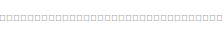
[diagram: root canvas - part 1/3, top left region]
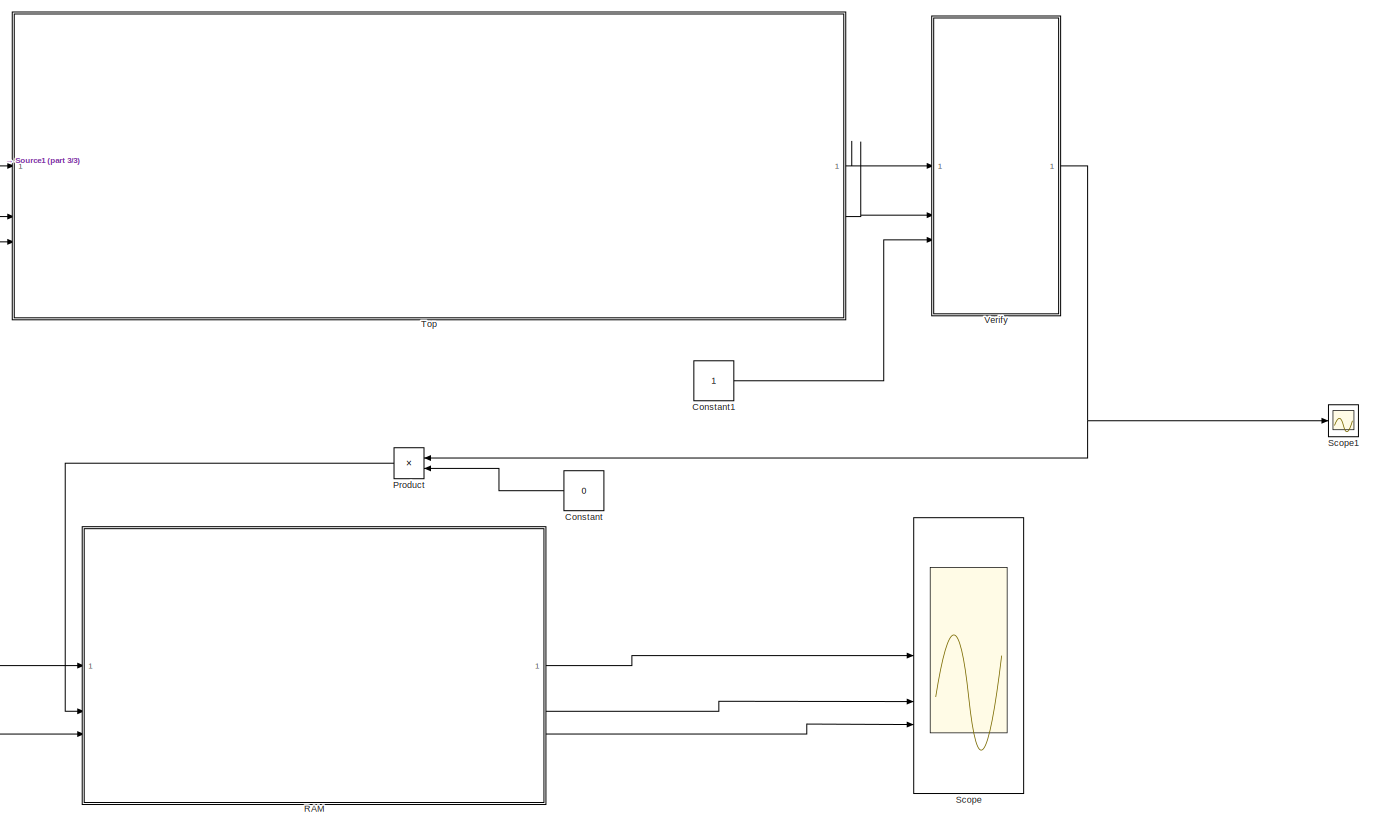
[diagram: root canvas - part 2/3, right side, full height]
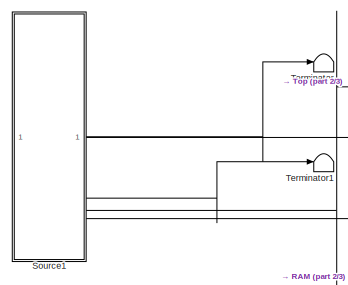
[diagram: root canvas - part 3/3, middle left region]
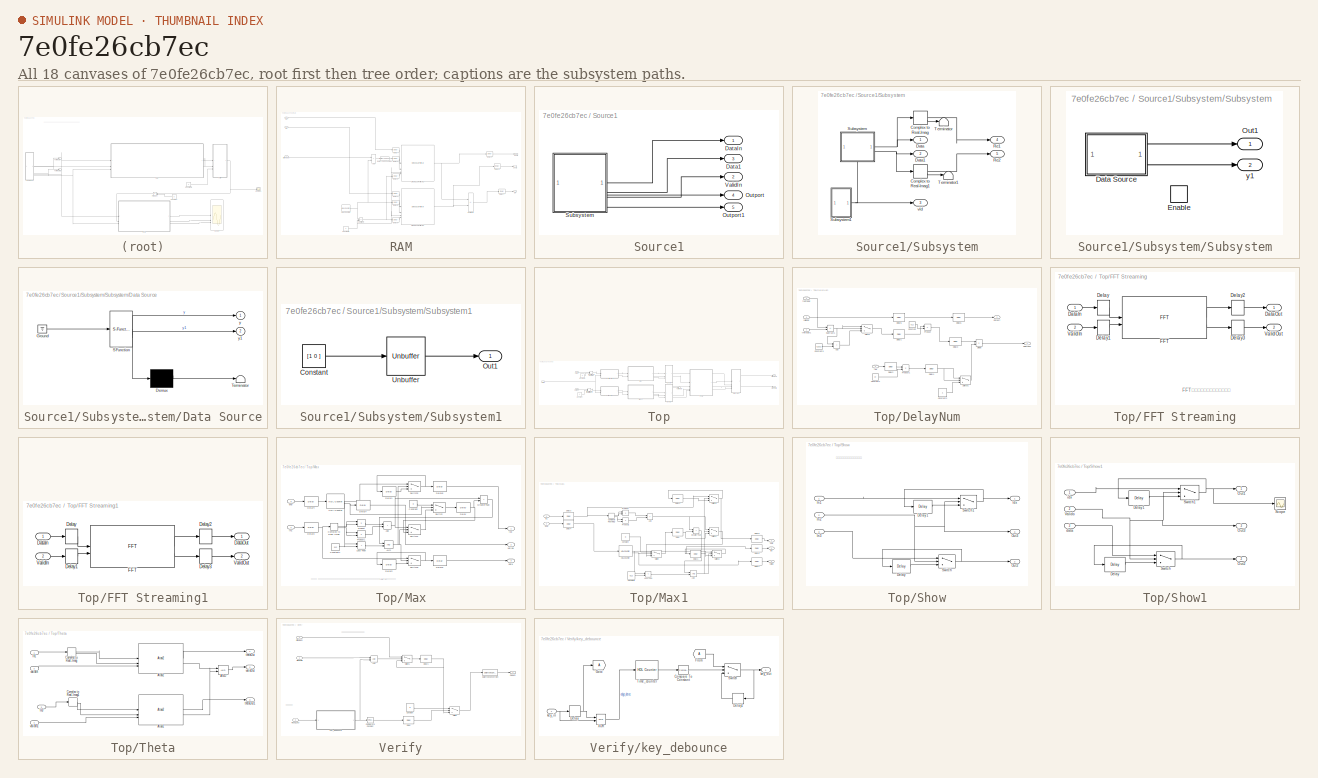
[diagram: thumbnail index - all 18 canvases of the model, root first then tree order]
MODEL slx_7e0fe26cb7ec
KIND model
CONFIG AbsTol = auto
CONFIG EnableMultiTasking = off
CONFIG FixedStep = auto
CONFIG MaxStep = auto
CONFIG MinStep = auto
CONFIG RelTol = 1e-3
CONFIG SampleTimeConstraint = Unconstrained
CONFIG SolverName = VariableStepAuto
CONFIG StartTime = 0.0
CONFIG StopTime = 1024*20
BLOCK [Constant] Constant
  NameLocation = top
  SampleTime = -1
  Value = 0
  VectorParams1D = off
BLOCK [Constant] Constant1
  OutDataTypeStr = boolean
  SampleTime = -1
  VectorParams1D = off
BLOCK [Product] Product
  NameLocation = top
  OutDataTypeStr = uint16
BLOCK [SubSystem] RAM
BLOCK [Sum] RAM/Add
  IconShape = rectangular
  OutDataTypeStr = uint16
BLOCK [Constant] RAM/Constant5
  OutDataTypeStr = Inherit: Inherit via back propagation
  SampleTime = -1
  VectorParams1D = off
BLOCK [DataTypeConversion] RAM/Data Type Conversion
  ConvertRealWorld = Stored Integer (SI)
  OutDataTypeStr = uint(12)
  RndMeth = Floor
  SaturateOnIntegerOverflow = off
BLOCK [Delay] RAM/Delay
  DelayLength = 1
  InitialCondition = 0
  InputPortMap = u0
  UseCircularBuffer = on
  UserDataPersistent = on
BLOCK [Delay] RAM/Delay2
  DelayLength = 1
  InitialCondition = 0
  InputPortMap = u0
  UseCircularBuffer = on
  UserDataPersistent = on
BLOCK [Delay] RAM/Delay3
  DelayLength = 1
  InitialCondition = 0
  InputPortMap = u0
  UseCircularBuffer = on
  UserDataPersistent = on
BLOCK [Delay] RAM/Delay4
  DelayLength = 1
  InitialCondition = 0
  InputPortMap = u0
  UseCircularBuffer = on
  UserDataPersistent = on
BLOCK [Delay] RAM/Delay5
  DelayLength = 1
  InitialCondition = 0
  InputPortMap = u0
  UseCircularBuffer = on
  UserDataPersistent = on
BLOCK [Delay] RAM/Delay6
  DelayLength = 1
  InitialCondition = 0
  InputPortMap = u0
  UseCircularBuffer = on
  UserDataPersistent = on
BLOCK [Delay] RAM/Delay7
  DelayLength = 1
  InitialCondition = 0
  InputPortMap = u0
  UseCircularBuffer = on
  UserDataPersistent = on
BLOCK [Delay] RAM/Delay8
  DelayLength = 1
  InitialCondition = 0
  InputPortMap = u0
  UseCircularBuffer = on
  UserDataPersistent = on
BLOCK [Delay] RAM/Delay9
  DelayLength = 1
  InitialCondition = 0
  InputPortMap = u0
  UseCircularBuffer = on
  UserDataPersistent = on
BLOCK [Outport] RAM/Err
BLOCK [Reference] RAM/HDL Counter4  REF=hdlsllib/Sources/HDL Counter
  SourceBlock = hdlsllib/Sources/HDL Counter
  SourceType = HDL Counter
BLOCK [Inport] RAM/OffsetAddr
  Port = 2
BLOCK [Inport] RAM/S1
  NameLocation = top
BLOCK [Inport] RAM/S2
  Port = 3
BLOCK [Reference] RAM/Simple Dual Port RAM3  REF=hdlsllib/HDL RAMs/Simple Dual Port RAM
  SourceBlock = hdlsllib/HDL RAMs/Simple Dual Port RAM
  SourceType = Simple Dual-port RAM
BLOCK [Reference] RAM/Simple Dual Port RAM4  REF=hdlsllib/HDL RAMs/Simple Dual Port RAM
  SourceBlock = hdlsllib/HDL RAMs/Simple Dual Port RAM
  SourceType = Simple Dual-port RAM
BLOCK [Outport] RAM/Sout1
  Port = 2
BLOCK [Outport] RAM/Sout2
  Port = 3
BLOCK [Sum] RAM/Subtract4
  IconShape = rectangular
  Inputs = +-
  OutDataTypeStr = uint(12)
BLOCK [Sum] RAM/Subtract6
  IconShape = rectangular
  Inputs = +-
BLOCK [Scope] Scope
  Floating = off
  NumInputPorts = 3
  ScopeSpecificationString = Simulink.scopes.TimeScopeBlockCfg('CurrentConfiguration', extmgr.ConfigurationSet(extmgr.Configuration('Core','General UI',true),extmgr.Configuration('Core','Source UI',true),extmgr.Configuration('Sources','WiredSimulink',true,'DataLoggingVariableName','ScopeData1'),extmgr.Configuration('Visuals','Time Domain',true,'SerializedDisplays',{struct('MinYLimReal','-1.36459','MaxYLimReal','1.03134','YLab...<+2777ch>
BLOCK [Scope] Scope1
  Floating = off
  NumInputPorts = 1
  ScopeSpecificationString = Simulink.scopes.TimeScopeBlockCfg('CurrentConfiguration', extmgr.ConfigurationSet(extmgr.Configuration('Core','General UI',true),extmgr.Configuration('Core','Source UI',true),extmgr.Configuration('Sources','WiredSimulink',true,'DataLoggingVariableName','ScopeData2'),extmgr.Configuration('Visuals','Time Domain',true,'SerializedDisplays',{struct('MinYLimReal','-1.25','MaxYLimReal','11.25','YLabelRea...<+1384ch>
BLOCK [SubSystem] Source1
BLOCK [Outport] Source1/Data1
  Port = 3
  VectorParamsAs1DForOutWhenUnconnected = off
BLOCK [Outport] Source1/DataIn
  VectorParamsAs1DForOutWhenUnconnected = off
BLOCK [Outport] Source1/Outport
  Port = 4
BLOCK [Outport] Source1/Outport1
  Port = 5
BLOCK [SubSystem] Source1/Subsystem
BLOCK [ComplexToRealImag] Source1/Subsystem/Complex to Real-Imag
BLOCK [ComplexToRealImag] Source1/Subsystem/Complex to Real-Imag1
BLOCK [Outport] Source1/Subsystem/Data
  VectorParamsAs1DForOutWhenUnconnected = off
BLOCK [Outport] Source1/Subsystem/Data1
  Port = 2
  VectorParamsAs1DForOutWhenUnconnected = off
BLOCK [Outport] Source1/Subsystem/Re1
  Port = 4
  VectorParamsAs1DForOutWhenUnconnected = off
BLOCK [Outport] Source1/Subsystem/Re2
  Port = 5
  VectorParamsAs1DForOutWhenUnconnected = off
BLOCK [SubSystem] Source1/Subsystem/Subsystem
  NameLocation = top
BLOCK [SubSystem] Source1/Subsystem/Subsystem/Data Source
  ErrorFcn = Stateflow.Translate.translate
  PermitHierarchicalResolution = ExplicitOnly
  SFBlockType = MATLAB Function
  TreatAsAtomicUnit = on
BLOCK [Demux] Source1/Subsystem/Subsystem/Data Source/ Demux 
  Outputs = 1
BLOCK [Ground] Source1/Subsystem/Subsystem/Data Source/ Ground 
BLOCK [S-Function] Source1/Subsystem/Subsystem/Data Source/ SFunction 
  EnableBusSupport = on
  FunctionName = sf_sfun
  PortCounts = [1 3]
  SFcnIsStateOwnerBlock = off
  SFunctionDeploymentMode = off
  Tag = Stateflow S-Function 1
BLOCK [Terminator] Source1/Subsystem/Subsystem/Data Source/ Terminator 
BLOCK [Outport] Source1/Subsystem/Subsystem/Data Source/y
  VectorParamsAs1DForOutWhenUnconnected = off
BLOCK [Outport] Source1/Subsystem/Subsystem/Data Source/y1
  Port = 2
BLOCK [EnablePort] Source1/Subsystem/Subsystem/Enable
BLOCK [Outport] Source1/Subsystem/Subsystem/Out1
  VectorParamsAs1DForOutWhenUnconnected = off
BLOCK [Outport] Source1/Subsystem/Subsystem/y1
  Port = 2
  VectorParamsAs1DForOutWhenUnconnected = off
BLOCK [SubSystem] Source1/Subsystem/Subsystem1
BLOCK [Constant] Source1/Subsystem/Subsystem1/Constant
  OutDataTypeStr = boolean
  SampleTime = -1
  Value = [1 0 ]
BLOCK [Outport] Source1/Subsystem/Subsystem1/Out1
  VectorParamsAs1DForOutWhenUnconnected = off
BLOCK [Unbuffer] Source1/Subsystem/Subsystem1/Unbuffer
BLOCK [Terminator] Source1/Subsystem/Terminator
BLOCK [Terminator] Source1/Subsystem/Terminator1
BLOCK [Outport] Source1/Subsystem/vld
  Port = 3
  VectorParamsAs1DForOutWhenUnconnected = off
BLOCK [Outport] Source1/ValidIn
  Port = 2
  VectorParamsAs1DForOutWhenUnconnected = off
BLOCK [Terminator] Terminator
BLOCK [Terminator] Terminator1
BLOCK [SubSystem] Top
BLOCK [Constant] Top/Constant
  OutDataTypeStr = Inherit: Inherit via back propagation
  SampleTime = -1
  Value = 0
  VectorParams1D = off
BLOCK [Constant] Top/Constant1
  OutDataTypeStr = Inherit: Inherit via back propagation
  SampleTime = -1
  Value = 0
  VectorParams1D = off
BLOCK [Inport] Top/DataIn
BLOCK [Inport] Top/DataIn1
  Port = 3
BLOCK [SubSystem] Top/DelayNum
BLOCK [Sum] Top/DelayNum/Add
  IconShape = rectangular
BLOCK [Constant] Top/DelayNum/Constant
  OutDataTypeStr = uint16
  SampleTime = -1
  Value = 512
BLOCK [Constant] Top/DelayNum/Constant1
  OutDataTypeStr = fixdt(1,17,13)
  SampleTime = -1
  Value = pi
  VectorParams1D = off
BLOCK [Constant] Top/DelayNum/Constant2
  OutDataTypeStr = fixdt(1,27,13)
  SampleTime = -1
  VectorParams1D = off
BLOCK [Constant] Top/DelayNum/Constant3
  OutDataTypeStr = fixdt(1,17,13)
  SampleTime = -1
  Value = 6.2832
  VectorParams1D = off
BLOCK [Delay] Top/DelayNum/Delay1
  DelayLength = 1
  InitialCondition = 0
  InputPortMap = u0
  UseCircularBuffer = on
  UserDataPersistent = on
BLOCK [Delay] Top/DelayNum/Delay2
  DelayLength = 1
  InitialCondition = 0
  InputPortMap = u0
  UseCircularBuffer = on
  UserDataPersistent = on
BLOCK [Delay] Top/DelayNum/Delay3
  DelayLength = 1
  InitialCondition = 0
  InputPortMap = u0
  UseCircularBuffer = on
  UserDataPersistent = on
BLOCK [Delay] Top/DelayNum/Delay4
  DelayLength = 1
  InitialCondition = 0
  InputPortMap = u0
  UseCircularBuffer = on
  UserDataPersistent = on
BLOCK [Delay] Top/DelayNum/Delay5
  DelayLength = 1
  InitialCondition = 0
  InputPortMap = u0
  UseCircularBuffer = on
  UserDataPersistent = on
BLOCK [Delay] Top/DelayNum/Delay6
  DelayLength = 1
  InitialCondition = 0
  InputPortMap = u0
  UseCircularBuffer = on
  UserDataPersistent = on
BLOCK [Outport] Top/DelayNum/DelayNum
  InitialOutput = 0
BLOCK [Product] Top/DelayNum/Divide
  Inputs = */
  RndMeth = Simplest
  SaturateOnIntegerOverflow = on
BLOCK [Inport] Top/DelayNum/Idx
  Port = 2
BLOCK [Outport] Top/DelayNum/Outport
  Port = 2
BLOCK [Product] Top/DelayNum/Product
BLOCK [Product] Top/DelayNum/Product1
BLOCK [Sum] Top/DelayNum/Subtract1
  IconShape = rectangular
  Inputs = -+
BLOCK [Switch] Top/DelayNum/Switch
  InputSameDT = off
  SaturateOnIntegerOverflow = off
BLOCK [Switch] Top/DelayNum/Switch1
  Criteria = u2 ~= 0
  InputSameDT = off
  SaturateOnIntegerOverflow = off
BLOCK [Inport] Top/DelayNum/thetaOut
BLOCK [Inport] Top/DelayNum/thetaOut1
  Port = 4
BLOCK [Inport] Top/DelayNum/validOut
  Port = 3
BLOCK [SubSystem] Top/FFT Streaming
BLOCK [Inport] Top/FFT Streaming/DataIn
BLOCK [Outport] Top/FFT Streaming/DataOut
  VectorParamsAs1DForOutWhenUnconnected = off
BLOCK [Delay] Top/FFT Streaming/Delay
  DelayLength = 1
  InitialCondition = 0
  InputPortMap = u0
  UseCircularBuffer = on
  UserDataPersistent = on
BLOCK [Delay] Top/FFT Streaming/Delay1
  DelayLength = 1
  InitialCondition = 0
  InputPortMap = u0
  UseCircularBuffer = on
  UserDataPersistent = on
BLOCK [Delay] Top/FFT Streaming/Delay2
  DelayLength = 1
  InitialCondition = 0
  InputPortMap = u0
  UseCircularBuffer = on
  UserDataPersistent = on
BLOCK [Delay] Top/FFT Streaming/Delay3
  DelayLength = 1
  InitialCondition = 0
  InputPortMap = u0
  UseCircularBuffer = on
  UserDataPersistent = on
BLOCK [Reference] Top/FFT Streaming/FFT  REF=dsphdlxfrm2/FFT
  SourceBlock = dsphdlxfrm2/FFT
  SourceType = FFT
BLOCK [Inport] Top/FFT Streaming/ValidIn
  Port = 2
BLOCK [Outport] Top/FFT Streaming/ValidOut
  Port = 2
  VectorParamsAs1DForOutWhenUnconnected = off
BLOCK [SubSystem] Top/FFT Streaming1
BLOCK [Inport] Top/FFT Streaming1/DataIn
BLOCK [Outport] Top/FFT Streaming1/DataOut
  VectorParamsAs1DForOutWhenUnconnected = off
BLOCK [Delay] Top/FFT Streaming1/Delay
  DelayLength = 1
  InitialCondition = 0
  InputPortMap = u0
  UseCircularBuffer = on
  UserDataPersistent = on
BLOCK [Delay] Top/FFT Streaming1/Delay1
  DelayLength = 1
  InitialCondition = 0
  InputPortMap = u0
  UseCircularBuffer = on
  UserDataPersistent = on
BLOCK [Delay] Top/FFT Streaming1/Delay2
  DelayLength = 1
  InitialCondition = 0
  InputPortMap = u0
  UseCircularBuffer = on
  UserDataPersistent = on
BLOCK [Delay] Top/FFT Streaming1/Delay3
  DelayLength = 1
  InitialCondition = 0
  InputPortMap = u0
  UseCircularBuffer = on
  UserDataPersistent = on
BLOCK [Reference] Top/FFT Streaming1/FFT  REF=dsphdlxfrm2/FFT
  SourceBlock = dsphdlxfrm2/FFT
  SourceType = FFT
BLOCK [Inport] Top/FFT Streaming1/ValidIn
  Port = 2
BLOCK [Outport] Top/FFT Streaming1/ValidOut
  Port = 2
  VectorParamsAs1DForOutWhenUnconnected = off
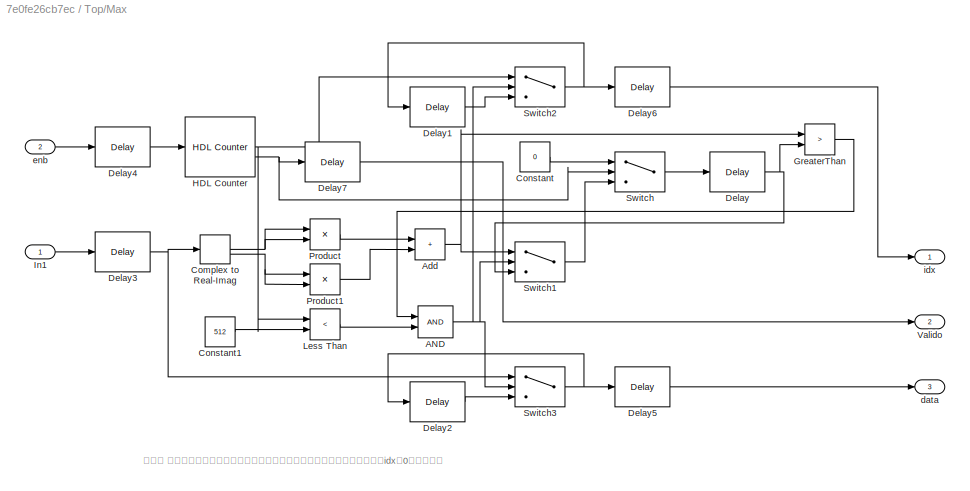
BLOCK [SubSystem] Top/Max
BLOCK [Logic] Top/Max/AND
  AllPortsSameDT = off
  IconShape = distinctive
  OutDataTypeStr = boolean
BLOCK [Sum] Top/Max/Add
  IconShape = rectangular
BLOCK [ComplexToRealImag] Top/Max/Complex to Real-Imag
BLOCK [Constant] Top/Max/Constant
  OutDataTypeStr = Inherit: Inherit via back propagation
  SampleTime = -1
  Value = 0
  VectorParams1D = off
BLOCK [Constant] Top/Max/Constant1
  OutDataTypeStr = Inherit: Inherit via back propagation
  SampleTime = -1
  Value = 512
  VectorParams1D = off
BLOCK [Delay] Top/Max/Delay
  DelayLength = 1
  InitialCondition = 0
  InputPortMap = u0
  UseCircularBuffer = on
  UserDataPersistent = on
BLOCK [Delay] Top/Max/Delay1
  DelayLength = 1
  InitialCondition = 0
  InputPortMap = u0
  UseCircularBuffer = on
  UserDataPersistent = on
BLOCK [Delay] Top/Max/Delay2
  DelayLength = 1
  InitialCondition = 0
  InputPortMap = u0
  UseCircularBuffer = on
  UserDataPersistent = on
BLOCK [Delay] Top/Max/Delay3
  DelayLength = 1
  InitialCondition = 0
  InputPortMap = u0
  UseCircularBuffer = on
  UserDataPersistent = on
BLOCK [Delay] Top/Max/Delay4
  DelayLength = 1
  InitialCondition = 0
  InputPortMap = u0
  UseCircularBuffer = on
  UserDataPersistent = on
BLOCK [Delay] Top/Max/Delay5
  DelayLength = 1
  InitialCondition = 0
  InputPortMap = u0
  UseCircularBuffer = on
  UserDataPersistent = on
BLOCK [Delay] Top/Max/Delay6
  DelayLength = 1
  InitialCondition = 0
  InputPortMap = u0
  UseCircularBuffer = on
  UserDataPersistent = on
BLOCK [Delay] Top/Max/Delay7
  DelayLength = 1
  InitialCondition = 0
  InputPortMap = u0
  UseCircularBuffer = on
  UserDataPersistent = on
BLOCK [RelationalOperator] Top/Max/GreaterThan
  InputSameDT = off
  Operator = >
  OutDataTypeStr = boolean
  RndMeth = Simplest
BLOCK [Reference] Top/Max/HDL Counter  REF=hdlsllib/Sources/HDL Counter
  SourceBlock = hdlsllib/Sources/HDL Counter
  SourceType = HDL Counter
BLOCK [Inport] Top/Max/In1
BLOCK [RelationalOperator] Top/Max/Less Than
  InputSameDT = off
  Operator = <
  OutDataTypeStr = boolean
  RndMeth = Simplest
BLOCK [Product] Top/Max/Product
BLOCK [Product] Top/Max/Product1
BLOCK [Switch] Top/Max/Switch
  Criteria = u2 ~= 0
  InputSameDT = off
  SaturateOnIntegerOverflow = off
BLOCK [Switch] Top/Max/Switch1
  Criteria = u2 ~= 0
  InputSameDT = off
  SaturateOnIntegerOverflow = off
BLOCK [Switch] Top/Max/Switch2
  Criteria = u2 ~= 0
  InputSameDT = off
  SaturateOnIntegerOverflow = off
BLOCK [Switch] Top/Max/Switch3
  Criteria = u2 ~= 0
  InputSameDT = off
  SaturateOnIntegerOverflow = off
BLOCK [Outport] Top/Max/Valido
  Port = 2
BLOCK [Outport] Top/Max/data
  Port = 3
BLOCK [Inport] Top/Max/enb
  Port = 2
BLOCK [Outport] Top/Max/idx
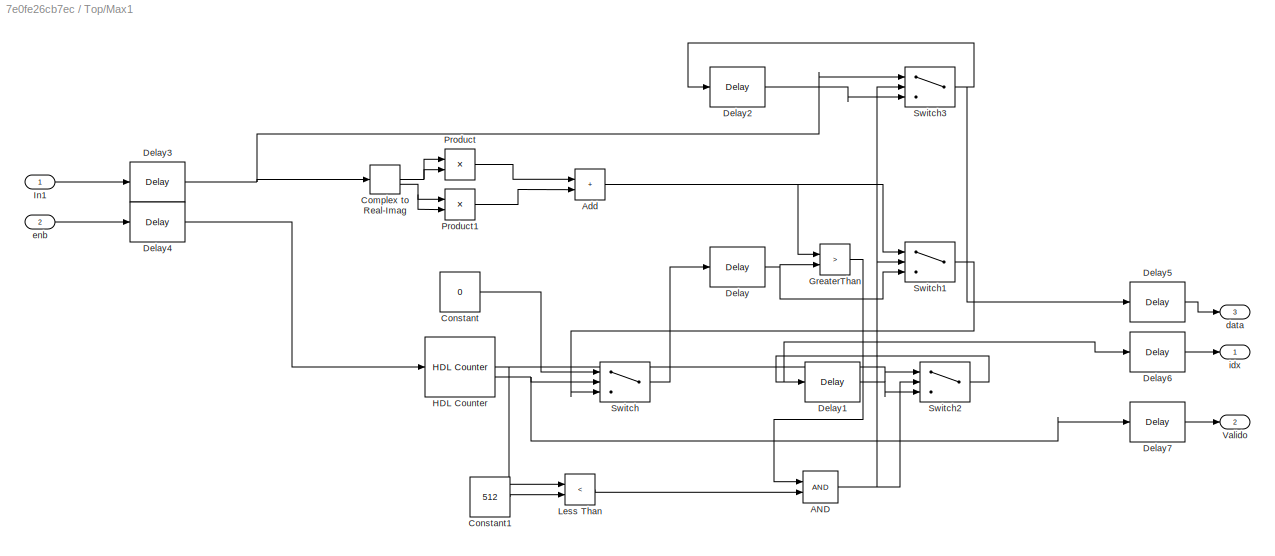
BLOCK [SubSystem] Top/Max1
BLOCK [Logic] Top/Max1/AND
  AllPortsSameDT = off
  IconShape = distinctive
  OutDataTypeStr = boolean
BLOCK [Sum] Top/Max1/Add
  IconShape = rectangular
BLOCK [ComplexToRealImag] Top/Max1/Complex to Real-Imag
BLOCK [Constant] Top/Max1/Constant
  OutDataTypeStr = Inherit: Inherit via back propagation
  SampleTime = -1
  Value = 0
  VectorParams1D = off
BLOCK [Constant] Top/Max1/Constant1
  OutDataTypeStr = Inherit: Inherit via back propagation
  SampleTime = -1
  Value = 512
  VectorParams1D = off
BLOCK [Delay] Top/Max1/Delay
  DelayLength = 1
  InitialCondition = 0
  InputPortMap = u0
  UseCircularBuffer = on
  UserDataPersistent = on
BLOCK [Delay] Top/Max1/Delay1
  DelayLength = 1
  InitialCondition = 0
  InputPortMap = u0
  UseCircularBuffer = on
  UserDataPersistent = on
BLOCK [Delay] Top/Max1/Delay2
  DelayLength = 1
  InitialCondition = 0
  InputPortMap = u0
  UseCircularBuffer = on
  UserDataPersistent = on
BLOCK [Delay] Top/Max1/Delay3
  DelayLength = 1
  InitialCondition = 0
  InputPortMap = u0
  UseCircularBuffer = on
  UserDataPersistent = on
BLOCK [Delay] Top/Max1/Delay4
  DelayLength = 1
  InitialCondition = 0
  InputPortMap = u0
  UseCircularBuffer = on
  UserDataPersistent = on
BLOCK [Delay] Top/Max1/Delay5
  DelayLength = 1
  InitialCondition = 0
  InputPortMap = u0
  UseCircularBuffer = on
  UserDataPersistent = on
BLOCK [Delay] Top/Max1/Delay6
  DelayLength = 1
  InitialCondition = 0
  InputPortMap = u0
  UseCircularBuffer = on
  UserDataPersistent = on
BLOCK [Delay] Top/Max1/Delay7
  DelayLength = 1
  InitialCondition = 0
  InputPortMap = u0
  UseCircularBuffer = on
  UserDataPersistent = on
BLOCK [RelationalOperator] Top/Max1/GreaterThan
  InputSameDT = off
  Operator = >
  OutDataTypeStr = boolean
  RndMeth = Simplest
BLOCK [Reference] Top/Max1/HDL Counter  REF=hdlsllib/Sources/HDL Counter
  SourceBlock = hdlsllib/Sources/HDL Counter
  SourceType = HDL Counter
BLOCK [Inport] Top/Max1/In1
BLOCK [RelationalOperator] Top/Max1/Less Than
  InputSameDT = off
  Operator = <
  OutDataTypeStr = boolean
  RndMeth = Simplest
BLOCK [Product] Top/Max1/Product
BLOCK [Product] Top/Max1/Product1
BLOCK [Switch] Top/Max1/Switch
  Criteria = u2 ~= 0
  InputSameDT = off
  SaturateOnIntegerOverflow = off
BLOCK [Switch] Top/Max1/Switch1
  Criteria = u2 ~= 0
  InputSameDT = off
  SaturateOnIntegerOverflow = off
BLOCK [Switch] Top/Max1/Switch2
  Criteria = u2 ~= 0
  InputSameDT = off
  SaturateOnIntegerOverflow = off
BLOCK [Switch] Top/Max1/Switch3
  Criteria = u2 ~= 0
  InputSameDT = off
  SaturateOnIntegerOverflow = off
BLOCK [Outport] Top/Max1/Valido
  Port = 2
BLOCK [Outport] Top/Max1/data
  Port = 3
BLOCK [Inport] Top/Max1/enb
  Port = 2
BLOCK [Outport] Top/Max1/idx
BLOCK [Outport] Top/OffsetNum
BLOCK [Outport] Top/OffsetValid
  Port = 2
BLOCK [RealImagToComplex] Top/Real-Imag to Complex
BLOCK [RealImagToComplex] Top/Real-Imag to Complex1
BLOCK [SubSystem] Top/Show
BLOCK [Delay] Top/Show/Delay
  DelayLength = 1
  InitialCondition = 0
  InputPortMap = u0
  UseCircularBuffer = on
  UserDataPersistent = on
BLOCK [Delay] Top/Show/Delay1
  DelayLength = 1
  InitialCondition = 0
  InputPortMap = u0
  UseCircularBuffer = on
  UserDataPersistent = on
BLOCK [Outport] Top/Show/Idx
BLOCK [Inport] Top/Show/In1
BLOCK [Inport] Top/Show/In2
  Port = 2
BLOCK [Inport] Top/Show/In3
  Port = 3
BLOCK [Outport] Top/Show/Out2
  Port = 2
BLOCK [Outport] Top/Show/Out3
  Port = 3
BLOCK [Switch] Top/Show/Switch
  Criteria = u2 ~= 0
  InputSameDT = off
  SaturateOnIntegerOverflow = off
BLOCK [Switch] Top/Show/Switch1
  Criteria = u2 ~= 0
  InputSameDT = off
  SaturateOnIntegerOverflow = off
BLOCK [SubSystem] Top/Show1
BLOCK [Delay] Top/Show1/Delay
  DelayLength = 1
  InitialCondition = 0
  InputPortMap = u0
  UseCircularBuffer = on
  UserDataPersistent = on
BLOCK [Delay] Top/Show1/Delay1
  DelayLength = 1
  InitialCondition = 0
  InputPortMap = u0
  UseCircularBuffer = on
  UserDataPersistent = on
BLOCK [Outport] Top/Show1/Out1
BLOCK [Outport] Top/Show1/Out2
  Port = 2
BLOCK [Outport] Top/Show1/Out3
  Port = 3
BLOCK [Scope] Top/Show1/Scope
  Floating = off
  NumInputPorts = 1
  ScopeSpecificationString = Simulink.scopes.TimeScopeBlockCfg('CurrentConfiguration', extmgr.ConfigurationSet(extmgr.Configuration('Core','General UI',true),extmgr.Configuration('Core','Source UI',true),extmgr.Configuration('Sources','WiredSimulink',true,'DataLoggingVariableName','ScopeData1'),extmgr.Configuration('Visuals','Time Domain',true,'SerializedDisplays',{struct('MinYLimReal','-6.375','MaxYLimReal','57.375','YLabelR...<+1358ch>
BLOCK [Switch] Top/Show1/Switch
  Criteria = u2 ~= 0
  InputSameDT = off
  SaturateOnIntegerOverflow = off
BLOCK [Switch] Top/Show1/Switch1
  Criteria = u2 ~= 0
  InputSameDT = off
  SaturateOnIntegerOverflow = off
BLOCK [Inport] Top/Show1/Valido
  Port = 2
BLOCK [Inport] Top/Show1/data
  Port = 3
BLOCK [Inport] Top/Show1/idx
BLOCK [Terminator] Top/Terminator
BLOCK [SubSystem] Top/Theta
BLOCK [Logic] Top/Theta/AND
  AllPortsSameDT = off
  IconShape = distinctive
  OutDataTypeStr = boolean
BLOCK [Reference] Top/Theta/Atan1  REF=HDLMathLib/Atan2
  SourceBlock = HDLMathLib/Atan2
  SourceType = Atan2
BLOCK [Reference] Top/Theta/Atan2  REF=HDLMathLib/Atan2
  SourceBlock = HDLMathLib/Atan2
  SourceType = Atan2
BLOCK [ComplexToRealImag] Top/Theta/Complex to Real-Imag
BLOCK [ComplexToRealImag] Top/Theta/Complex to Real-Imag1
BLOCK [Inport] Top/Theta/In1
BLOCK [Inport] Top/Theta/In3
  Port = 3
BLOCK [Outport] Top/Theta/thetaOut
BLOCK [Outport] Top/Theta/thetaOut1
  Port = 3
BLOCK [Inport] Top/Theta/validIn
  Port = 2
BLOCK [Inport] Top/Theta/validIn1
  Port = 4
BLOCK [Outport] Top/Theta/validOut
  Port = 2
BLOCK [Inport] Top/ValidIn
  Port = 2
BLOCK [SubSystem] Verify
BLOCK [Logic] Verify/AND
  AllPortsSameDT = off
  IconShape = distinctive
  OutDataTypeStr = boolean
BLOCK [Reference] Verify/Compare To Constant  REF=hdlsllib/Logic and Bit
Operations/Compare
To Constant
  SourceBlock = hdlsllib/Logic and Bit\nOperations/Compare\nTo Constant
  SourceType = Compare To Constant
BLOCK [Constant] Verify/Constant
  OutDataTypeStr = int16
  SampleTime = -1
  Value = 0
  VectorParams1D = off
BLOCK [DataTypeConversion] Verify/Data Type Conversion
  OutDataTypeStr = uint16
  RndMeth = Floor
  SaturateOnIntegerOverflow = off
BLOCK [Outport] Verify/DelNum
BLOCK [Delay] Verify/Delay
  DelayLength = 1
  InitialCondition = 0
  InputPortMap = u0
  UseCircularBuffer = on
  UserDataPersistent = on
BLOCK [Delay] Verify/Delay1
  DelayLength = 1
  InitialCondition = 0
  InputPortMap = u0
  UseCircularBuffer = on
  UserDataPersistent = on
BLOCK [Inport] Verify/OffsetNum
BLOCK [Inport] Verify/OffsetValid
  Port = 2
BLOCK [Inport] Verify/Reset_key
  OutDataTypeStr = boolean
  Port = 3
BLOCK [Switch] Verify/Switch
  Criteria = u2 ~= 0
  InputSameDT = off
  SaturateOnIntegerOverflow = off
BLOCK [Switch] Verify/Switch1
  Criteria = u2 ~= 0
  InputSameDT = off
  SaturateOnIntegerOverflow = off
BLOCK [SubSystem] Verify/key_debounce
BLOCK [Reference] Verify/key_debounce/Compare To Constant  REF=simulink/Logic and Bit
Operations/Compare
To Constant
  SourceBlock = simulink/Logic and Bit\nOperations/Compare\nTo Constant
  SourceType = Compare To Constant
BLOCK [Delay] Verify/key_debounce/Delay
  DelayLength = 1
  InitialCondition = 1
  InputPortMap = u0
BLOCK [Delay] Verify/key_debounce/Delay1
  DelayLength = 1
  InitialCondition = 1
  InputPortMap = u0
  NameLocation = top
BLOCK [From] Verify/key_debounce/From
BLOCK [Goto] Verify/key_debounce/Goto
BLOCK [Switch] Verify/key_debounce/Switch
  Criteria = u2 > Threshold
  InputSameDT = off
  SaturateOnIntegerOverflow = off
BLOCK [Reference] Verify/key_debounce/Time_counter  REF=hdlsllib/Sources/HDL Counter
  SourceBlock = hdlsllib/Sources/HDL Counter
  SourceType = HDL Counter
BLOCK [Logic] Verify/key_debounce/XOR
  AllPortsSameDT = off
  IconShape = distinctive
  Operator = XOR
  OutDataTypeStr = boolean
BLOCK [Inport] Verify/key_debounce/key_in
BLOCK [Outport] Verify/key_debounce/key_out
  VectorParamsAs1DForOutWhenUnconnected = off
ANNOTATION (root): 添加两个按键输入信号，一个用于复位，一个用于相位校正，保持最后一次校正值
ANNOTATION Top/FFT Streaming: FFT单元，输入输出添加了寄存器
ANNOTATION Top/Max: 输入为 复数以及有效信号，计算幅值大小并存储当前最大值，最后一起输出。idx从0开始计算。
ANNOTATION Top/Show: 调试单元，可以查看输出情况
ANNOTATION Verify: 低电平表示按下
ANNOTATION Verify: 保持电路，如果没有复位则保持 上一次的有效偏移量
LINE Constant1:1 -> Verify:3
LINE Constant:1 -> Product:2
LINE Product:1 -> RAM:2
LINE RAM/Add:1 -> RAM/Data Type Conversion:1
NET RAM/Constant5:1 -> RAM/Simple Dual Port RAM3:3, RAM/Simple Dual Port RAM4:3, RAM/Subtract4:2
LINE RAM/Data Type Conversion:1 -> RAM/Delay2:1
LINE RAM/Delay2:1 -> RAM/Simple Dual Port RAM3:2
LINE RAM/Delay3:1 -> RAM/Simple Dual Port RAM3:4
LINE RAM/Delay4:1 -> RAM/Simple Dual Port RAM4:1
LINE RAM/Delay5:1 -> RAM/Simple Dual Port RAM4:2
LINE RAM/Delay6:1 -> RAM/Simple Dual Port RAM4:4
LINE RAM/Delay7:1 -> RAM/Err:1
LINE RAM/Delay8:1 -> RAM/Sout2:1
LINE RAM/Delay9:1 -> RAM/Sout1:1
LINE RAM/Delay:1 -> RAM/Simple Dual Port RAM3:1
NET RAM/HDL Counter4:1 -> RAM/Add:2, RAM/Delay5:1, RAM/Subtract4:1
LINE RAM/OffsetAddr:1 -> RAM/Add:1
LINE RAM/S1:1 -> RAM/Delay:1
LINE RAM/S2:1 -> RAM/Delay4:1
NET RAM/Simple Dual Port RAM3:1 -> RAM/Delay9:1, RAM/Subtract6:1
NET RAM/Simple Dual Port RAM4:1 -> RAM/Delay8:1, RAM/Subtract6:2
NET RAM/Subtract4:1 -> RAM/Delay3:1, RAM/Delay6:1
LINE RAM/Subtract6:1 -> RAM/Delay7:1
LINE RAM:1 -> Scope:1
LINE RAM:2 -> Scope:2
LINE RAM:3 -> Scope:3
LINE Source1/Subsystem/Complex to Real-Imag1:1 -> Source1/Subsystem/Re2:1
LINE Source1/Subsystem/Complex to Real-Imag1:2 -> Source1/Subsystem/Terminator1:1
LINE Source1/Subsystem/Complex to Real-Imag:1 -> Source1/Subsystem/Re1:1
LINE Source1/Subsystem/Complex to Real-Imag:2 -> Source1/Subsystem/Terminator:1
LINE Source1/Subsystem/Subsystem/Data Source:1 -> Source1/Subsystem/Subsystem/Out1:1
LINE Source1/Subsystem/Subsystem/Data Source:2 -> Source1/Subsystem/Subsystem/y1:1
LINE Source1/Subsystem/Subsystem1/Constant:1 -> Source1/Subsystem/Subsystem1/Unbuffer:1
LINE Source1/Subsystem/Subsystem1/Unbuffer:1 -> Source1/Subsystem/Subsystem1/Out1:1
NET Source1/Subsystem/Subsystem1:1 -> Source1/Subsystem/Subsystem:enable, Source1/Subsystem/vld:1
NET Source1/Subsystem/Subsystem:1 -> Source1/Subsystem/Complex to Real-Imag:1, Source1/Subsystem/Data:1
NET Source1/Subsystem/Subsystem:2 -> Source1/Subsystem/Complex to Real-Imag1:1, Source1/Subsystem/Data1:1
LINE Source1/Subsystem:1 -> Source1/DataIn:1
LINE Source1/Subsystem:2 -> Source1/Data1:1
LINE Source1/Subsystem:3 -> Source1/ValidIn:1
LINE Source1/Subsystem:4 -> Source1/Outport:1
LINE Source1/Subsystem:5 -> Source1/Outport1:1
LINE Source1:1 -> Terminator:1
LINE Source1:2 -> Top:2
LINE Source1:3 -> Terminator1:1
NET Source1:4 -> RAM:1, Top:1
NET Source1:5 -> RAM:3, Top:3
LINE Top/Constant1:1 -> Top/Real-Imag to Complex:2
LINE Top/Constant:1 -> Top/Real-Imag to Complex1:2
LINE Top/DataIn1:1 -> Top/Real-Imag to Complex1:1
LINE Top/DataIn:1 -> Top/Real-Imag to Complex:1
LINE Top/DelayNum/Add:1 -> Top/DelayNum/Switch:3
LINE Top/DelayNum/Constant1:1 -> Top/DelayNum/Product1:2
LINE Top/DelayNum/Constant2:1 -> Top/DelayNum/Switch1:3
LINE Top/DelayNum/Constant3:1 -> Top/DelayNum/Add:2
LINE Top/DelayNum/Constant:1 -> Top/DelayNum/Product:2
LINE Top/DelayNum/Delay1:1 -> Top/DelayNum/Product:1
LINE Top/DelayNum/Delay2:1 -> Top/DelayNum/Product1:1
LINE Top/DelayNum/Delay3:1 -> Top/DelayNum/Divide:1
NET Top/DelayNum/Delay4:1 -> Top/DelayNum/Switch1:1, Top/DelayNum/Switch1:2
LINE Top/DelayNum/Delay5:1 -> Top/DelayNum/Delay6:1
LINE Top/DelayNum/Delay6:1 -> Top/DelayNum/Outport:1
LINE Top/DelayNum/Divide:1 -> Top/DelayNum/DelayNum:1
LINE Top/DelayNum/Idx:1 -> Top/DelayNum/Delay2:1
LINE Top/DelayNum/Product1:1 -> Top/DelayNum/Delay4:1
LINE Top/DelayNum/Product:1 -> Top/DelayNum/Delay3:1
NET Top/DelayNum/Subtract1:1 -> Top/DelayNum/Add:1, Top/DelayNum/Switch:1, Top/DelayNum/Switch:2
LINE Top/DelayNum/Switch1:1 -> Top/DelayNum/Divide:2
LINE Top/DelayNum/Switch:1 -> Top/DelayNum/Delay1:1
LINE Top/DelayNum/thetaOut1:1 -> Top/DelayNum/Subtract1:2
LINE Top/DelayNum/thetaOut:1 -> Top/DelayNum/Subtract1:1
LINE Top/DelayNum/validOut:1 -> Top/DelayNum/Delay5:1
LINE Top/DelayNum:1 -> Top/OffsetNum:1
LINE Top/DelayNum:2 -> Top/OffsetValid:1
LINE Top/FFT Streaming/DataIn:1 -> Top/FFT Streaming/Delay:1
LINE Top/FFT Streaming/Delay1:1 -> Top/FFT Streaming/FFT:2
LINE Top/FFT Streaming/Delay2:1 -> Top/FFT Streaming/DataOut:1
LINE Top/FFT Streaming/Delay3:1 -> Top/FFT Streaming/ValidOut:1
LINE Top/FFT Streaming/Delay:1 -> Top/FFT Streaming/FFT:1
LINE Top/FFT Streaming/FFT:1 -> Top/FFT Streaming/Delay2:1
LINE Top/FFT Streaming/FFT:2 -> Top/FFT Streaming/Delay3:1
LINE Top/FFT Streaming/ValidIn:1 -> Top/FFT Streaming/Delay1:1
LINE Top/FFT Streaming1/DataIn:1 -> Top/FFT Streaming1/Delay:1
LINE Top/FFT Streaming1/Delay1:1 -> Top/FFT Streaming1/FFT:2
LINE Top/FFT Streaming1/Delay2:1 -> Top/FFT Streaming1/DataOut:1
LINE Top/FFT Streaming1/Delay3:1 -> Top/FFT Streaming1/ValidOut:1
LINE Top/FFT Streaming1/Delay:1 -> Top/FFT Streaming1/FFT:1
LINE Top/FFT Streaming1/FFT:1 -> Top/FFT Streaming1/Delay2:1
LINE Top/FFT Streaming1/FFT:2 -> Top/FFT Streaming1/Delay3:1
LINE Top/FFT Streaming1/ValidIn:1 -> Top/FFT Streaming1/Delay1:1
LINE Top/FFT Streaming1:1 -> Top/Max1:1
LINE Top/FFT Streaming1:2 -> Top/Max1:2
LINE Top/FFT Streaming:1 -> Top/Max:1
LINE Top/FFT Streaming:2 -> Top/Max:2
NET Top/Max/AND:1 -> Top/Max/Switch1:2, Top/Max/Switch2:2, Top/Max/Switch3:2
NET Top/Max/Add:1 -> Top/Max/GreaterThan:1, Top/Max/Switch1:1
NET Top/Max/Complex to Real-Imag:1 -> Top/Max/Product:1, Top/Max/Product:2
NET Top/Max/Complex to Real-Imag:2 -> Top/Max/Product1:1, Top/Max/Product1:2
LINE Top/Max/Constant1:1 -> Top/Max/Less Than:2
LINE Top/Max/Constant:1 -> Top/Max/Switch:1
LINE Top/Max/Delay1:1 -> Top/Max/Switch2:3
LINE Top/Max/Delay2:1 -> Top/Max/Switch3:3
NET Top/Max/Delay3:1 -> Top/Max/Complex to Real-Imag:1, Top/Max/Switch3:1
LINE Top/Max/Delay4:1 -> Top/Max/HDL Counter:1
LINE Top/Max/Delay5:1 -> Top/Max/data:1
LINE Top/Max/Delay6:1 -> Top/Max/idx:1
LINE Top/Max/Delay7:1 -> Top/Max/Valido:1
NET Top/Max/Delay:1 -> Top/Max/GreaterThan:2, Top/Max/Switch1:3
LINE Top/Max/GreaterThan:1 -> Top/Max/AND:1
NET Top/Max/HDL Counter:1 -> Top/Max/Less Than:1, Top/Max/Switch2:1
NET Top/Max/HDL Counter:2 -> Top/Max/Delay7:1, Top/Max/Switch:2
LINE Top/Max/In1:1 -> Top/Max/Delay3:1
LINE Top/Max/Less Than:1 -> Top/Max/AND:2
LINE Top/Max/Product1:1 -> Top/Max/Add:2
LINE Top/Max/Product:1 -> Top/Max/Add:1
LINE Top/Max/Switch1:1 -> Top/Max/Switch:3
NET Top/Max/Switch2:1 -> Top/Max/Delay1:1, Top/Max/Delay6:1
NET Top/Max/Switch3:1 -> Top/Max/Delay2:1, Top/Max/Delay5:1
LINE Top/Max/Switch:1 -> Top/Max/Delay:1
LINE Top/Max/enb:1 -> Top/Max/Delay4:1
NET Top/Max1/AND:1 -> Top/Max1/Switch1:2, Top/Max1/Switch2:2, Top/Max1/Switch3:2
NET Top/Max1/Add:1 -> Top/Max1/GreaterThan:1, Top/Max1/Switch1:1
NET Top/Max1/Complex to Real-Imag:1 -> Top/Max1/Product:1, Top/Max1/Product:2
NET Top/Max1/Complex to Real-Imag:2 -> Top/Max1/Product1:1, Top/Max1/Product1:2
LINE Top/Max1/Constant1:1 -> Top/Max1/Less Than:2
LINE Top/Max1/Constant:1 -> Top/Max1/Switch:1
LINE Top/Max1/Delay1:1 -> Top/Max1/Switch2:3
LINE Top/Max1/Delay2:1 -> Top/Max1/Switch3:3
NET Top/Max1/Delay3:1 -> Top/Max1/Complex to Real-Imag:1, Top/Max1/Switch3:1
LINE Top/Max1/Delay4:1 -> Top/Max1/HDL Counter:1
LINE Top/Max1/Delay5:1 -> Top/Max1/data:1
LINE Top/Max1/Delay6:1 -> Top/Max1/idx:1
LINE Top/Max1/Delay7:1 -> Top/Max1/Valido:1
NET Top/Max1/Delay:1 -> Top/Max1/GreaterThan:2, Top/Max1/Switch1:3
LINE Top/Max1/GreaterThan:1 -> Top/Max1/AND:1
NET Top/Max1/HDL Counter:1 -> Top/Max1/Less Than:1, Top/Max1/Switch2:1
NET Top/Max1/HDL Counter:2 -> Top/Max1/Delay7:1, Top/Max1/Switch:2
LINE Top/Max1/In1:1 -> Top/Max1/Delay3:1
LINE Top/Max1/Less Than:1 -> Top/Max1/AND:2
LINE Top/Max1/Product1:1 -> Top/Max1/Add:2
LINE Top/Max1/Product:1 -> Top/Max1/Add:1
LINE Top/Max1/Switch1:1 -> Top/Max1/Switch:3
NET Top/Max1/Switch2:1 -> Top/Max1/Delay1:1, Top/Max1/Delay6:1
NET Top/Max1/Switch3:1 -> Top/Max1/Delay2:1, Top/Max1/Delay5:1
LINE Top/Max1/Switch:1 -> Top/Max1/Delay:1
LINE Top/Max1/enb:1 -> Top/Max1/Delay4:1
LINE Top/Max1:1 -> Top/Show1:1
LINE Top/Max1:2 -> Top/Show1:2
LINE Top/Max1:3 -> Top/Show1:3
LINE Top/Max:1 -> Top/Show:1
LINE Top/Max:2 -> Top/Show:2
LINE Top/Max:3 -> Top/Show:3
LINE Top/Real-Imag to Complex1:1 -> Top/FFT Streaming1:1
LINE Top/Real-Imag to Complex:1 -> Top/FFT Streaming:1
LINE Top/Show/Delay1:1 -> Top/Show/Switch1:3
LINE Top/Show/Delay:1 -> Top/Show/Switch:3
LINE Top/Show/In1:1 -> Top/Show/Switch1:1
NET Top/Show/In2:1 -> Top/Show/Out3:1, Top/Show/Switch1:2, Top/Show/Switch:2
LINE Top/Show/In3:1 -> Top/Show/Switch:1
NET Top/Show/Switch1:1 -> Top/Show/Delay1:1, Top/Show/Idx:1
NET Top/Show/Switch:1 -> Top/Show/Delay:1, Top/Show/Out2:1
LINE Top/Show1/Delay1:1 -> Top/Show1/Switch1:3
LINE Top/Show1/Delay:1 -> Top/Show1/Switch:3
NET Top/Show1/Switch1:1 -> Top/Show1/Delay1:1, Top/Show1/Out1:1, Top/Show1/Scope:1
NET Top/Show1/Switch:1 -> Top/Show1/Delay:1, Top/Show1/Out2:1
NET Top/Show1/Valido:1 -> Top/Show1/Out3:1, Top/Show1/Switch1:2, Top/Show1/Switch:2
LINE Top/Show1/data:1 -> Top/Show1/Switch:1
LINE Top/Show1/idx:1 -> Top/Show1/Switch1:1
LINE Top/Show1:1 -> Top/Terminator:1
LINE Top/Show1:2 -> Top/Theta:3
LINE Top/Show1:3 -> Top/Theta:4
LINE Top/Show:1 -> Top/DelayNum:2
LINE Top/Show:2 -> Top/Theta:1
LINE Top/Show:3 -> Top/Theta:2
LINE Top/Theta/AND:1 -> Top/Theta/validOut:1
LINE Top/Theta/Atan1:1 -> Top/Theta/thetaOut1:1
LINE Top/Theta/Atan1:2 -> Top/Theta/AND:2
LINE Top/Theta/Atan2:1 -> Top/Theta/thetaOut:1
LINE Top/Theta/Atan2:2 -> Top/Theta/AND:1
LINE Top/Theta/Complex to Real-Imag1:1 -> Top/Theta/Atan1:1
LINE Top/Theta/Complex to Real-Imag1:2 -> Top/Theta/Atan1:2
LINE Top/Theta/Complex to Real-Imag:1 -> Top/Theta/Atan2:1
LINE Top/Theta/Complex to Real-Imag:2 -> Top/Theta/Atan2:2
LINE Top/Theta/In1:1 -> Top/Theta/Complex to Real-Imag:1
LINE Top/Theta/In3:1 -> Top/Theta/Complex to Real-Imag1:1
LINE Top/Theta/validIn1:1 -> Top/Theta/Atan1:3
LINE Top/Theta/validIn:1 -> Top/Theta/Atan2:3
LINE Top/Theta:1 -> Top/DelayNum:1
LINE Top/Theta:2 -> Top/DelayNum:3
LINE Top/Theta:3 -> Top/DelayNum:4
NET Top/ValidIn:1 -> Top/FFT Streaming1:2, Top/FFT Streaming:2
LINE Top:1 -> Verify:1
LINE Top:2 -> Verify:2
LINE Verify/AND:1 -> Verify/Switch1:2
LINE Verify/Compare To Constant:1 -> Verify/Delay:1
LINE Verify/Constant:1 -> Verify/Switch:1
LINE Verify/Data Type Conversion:1 -> Verify/DelNum:1
NET Verify/Delay1:1 -> Verify/Switch1:3, Verify/Switch:3
LINE Verify/Delay:1 -> Verify/Switch:2
LINE Verify/OffsetNum:1 -> Verify/Switch1:1
LINE Verify/OffsetValid:1 -> Verify/AND:1
LINE Verify/Reset_key:1 -> Verify/key_debounce:1
LINE Verify/Switch1:1 -> Verify/Delay1:1
LINE Verify/Switch:1 -> Verify/Data Type Conversion:1
LINE Verify/key_debounce/Compare To Constant:1 -> Verify/key_debounce/Switch:2
LINE Verify/key_debounce/Delay1:1 -> Verify/key_debounce/Switch:3
NET Verify/key_debounce/Delay:1 -> Verify/key_debounce/Goto:1, Verify/key_debounce/XOR:1
LINE Verify/key_debounce/From:1 -> Verify/key_debounce/Switch:1
NET Verify/key_debounce/Switch:1 -> Verify/key_debounce/Delay1:1, Verify/key_debounce/key_out:1
LINE Verify/key_debounce/Time_counter:1 -> Verify/key_debounce/Compare To Constant:1
LINE Verify/key_debounce/XOR:1 -> Verify/key_debounce/Time_counter:1
NET Verify/key_debounce/key_in:1 -> Verify/key_debounce/Delay:1, Verify/key_debounce/XOR:2
NET Verify/key_debounce:1 -> Verify/AND:2, Verify/Compare To Constant:1
NET Verify:1 -> Product:1, Scope1:1
note: NET lines group one-source signal fan-out (src -> all destinations, sorted); 1:1 wires keep LINE
CHART Source1/Subsystem/Subsystem/Data Source states=1 transitions=1
  STATE_LABEL 'eML_blk_kernel()'
  STATE_LABEL "SCRIPT:\nfunction [y,y1] = fcn()\nFs  = 650e6;\nFrameSize  = 1;\npersistent sinegen1 \npersistent sinegen2\nnoiseVar   = 0;\n% 信号频率实际为 2.5e6\nif isempty(sinegen1)\n    sinegen1 = dsp.SineWave('Amplitude', 1, 'Frequency',6.5e6, 'SampleRate',Fs,'SamplesPerFrame',FrameSize,'PhaseOffset',pi/5);\n    sinegen2 = dsp.SineWave('Amplitude', 1, 'Frequency',6.5e6, 'SampleRate',Fs,'SamplesPerFrame',FrameSize);\n\nend\n\ny ...<+153ch>"
CHART  states=0 transitions=0
